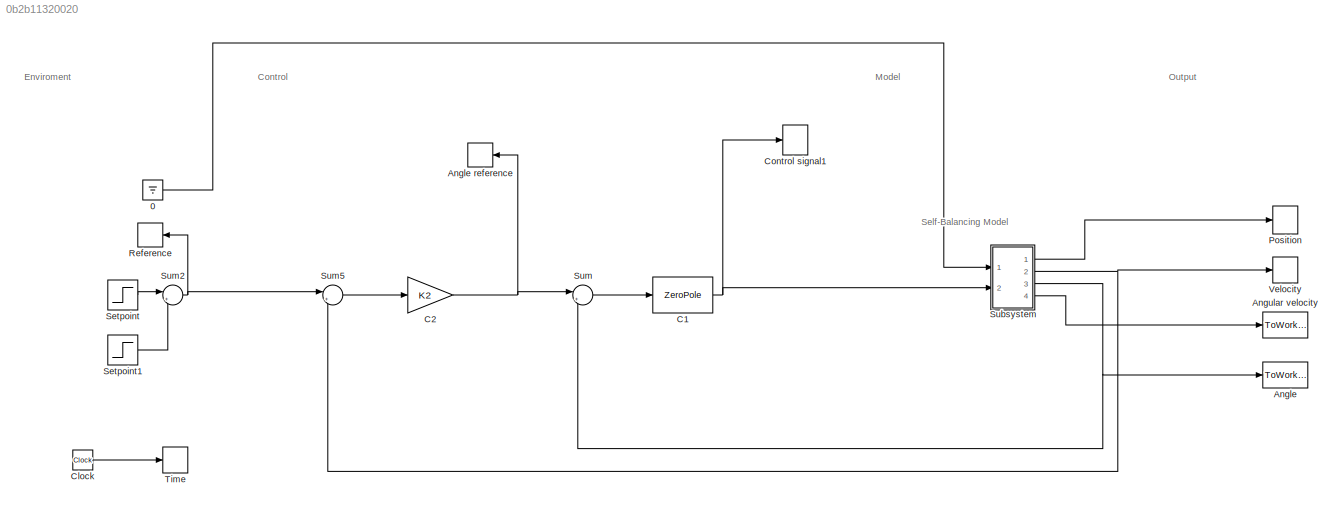
MODEL slx_0b2b11320020
KIND model
CONFIG AbsTol = auto
CONFIG EnableMultiTasking = off
CONFIG FixedStep = auto
CONFIG MaxStep = auto
CONFIG MinStep = auto
CONFIG RelTol = 1e-3
CONFIG SampleTimeConstraint = Unconstrained
CONFIG Solver = VariableStepAuto
CONFIG SolverName = VariableStepAuto
CONFIG StartTime = 0.0
CONFIG StopTime = 10.0
BLOCK [Ground] 0
BLOCK [ToWorkspace] Angle
  MaxDataPoints = inf
  Ports = [1]
  SampleTime = -1
  VariableName = theta
BLOCK [ToWorkspace] Angle reference
  MaxDataPoints = inf
  Ports = [1]
  SampleTime = -1
  VariableName = ri
BLOCK [ToWorkspace] Angular velocity
  MaxDataPoints = inf
  Ports = [1]
  SampleTime = -1
  VariableName = omega
BLOCK [ZeroPole] C1
  Gain = [K1]
  Poles = [-p1]
  Zeros = [-p]
BLOCK [Gain] C2
  Gain = K2
  OutDataTypeStr = Inherit: Inherit via internal rule
  ParamDataTypeStr = Inherit: Inherit via internal rule
  SaturateOnIntegerOverflow = off
BLOCK [Clock] Clock
BLOCK [ToWorkspace] Control signal1
  MaxDataPoints = inf
  Ports = [1]
  SampleTime = -1
  VariableName = u
BLOCK [ToWorkspace] Position
  MaxDataPoints = inf
  Ports = [1]
  SampleTime = -1
  VariableName = x
BLOCK [ToWorkspace] Reference
  MaxDataPoints = inf
  Ports = [1]
  SampleTime = -1
  VariableName = r
BLOCK [Step] Setpoint
  After = 0.5
  SampleTime = 0
  Time = 10
BLOCK [Step] Setpoint1
  After = -0.5
  SampleTime = 0
  Time = 20
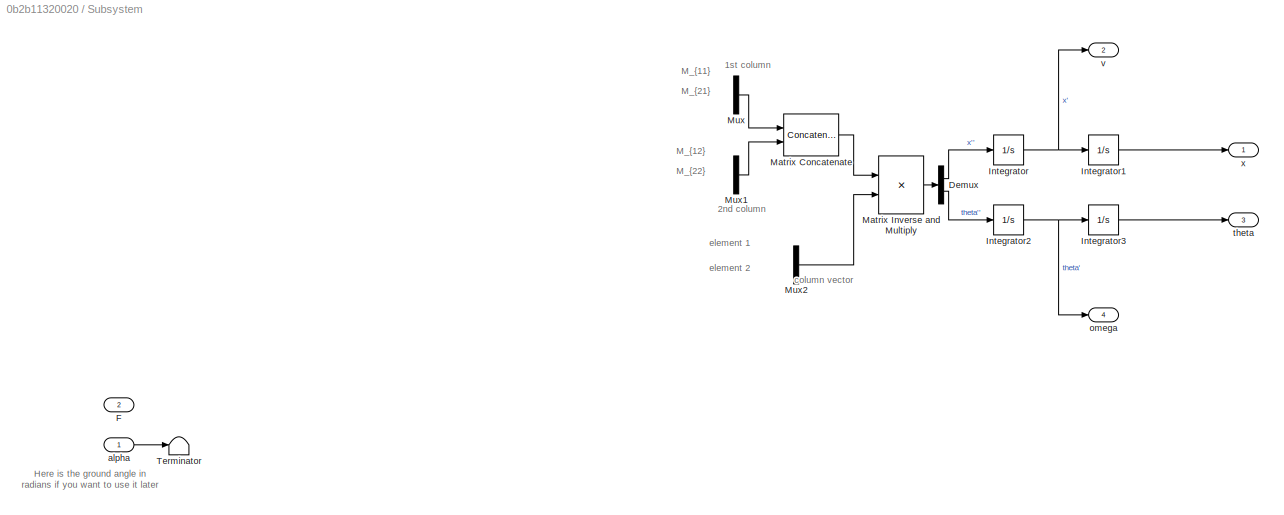
BLOCK [SubSystem] Subsystem
  Ports = [2, 4]
  RequestExecContextInheritance = off
  Variant = off
BLOCK [Demux] Subsystem/Demux
  DisplayOption = bar
  Outputs = 2
  Ports = [1, 2]
BLOCK [Inport] Subsystem/F
  IconDisplay = Port number
  Port = 2
BLOCK [Integrator] Subsystem/Integrator
  Ports = [1, 1]
BLOCK [Integrator] Subsystem/Integrator1
  Ports = [1, 1]
BLOCK [Integrator] Subsystem/Integrator2
  Ports = [1, 1]
BLOCK [Integrator] Subsystem/Integrator3
  InitialCondition = theta0
  Ports = [1, 1]
BLOCK [Concatenate] Subsystem/Matrix Concatenate
  ConcatenateDimension = 2
  Mode = Multidimensional array
  Ports = [2, 1]
BLOCK [Product] Subsystem/Matrix Inverse and Multiply
  InputSameDT = off
  Inputs = /*
  Multiplication = Matrix(*)
  OutDataTypeStr = Inherit: Inherit via internal rule
  Ports = [2, 1]
  RndMeth = Floor
  SaturateOnIntegerOverflow = off
BLOCK [Mux] Subsystem/Mux
  DisplayOption = bar
  Inputs = 2
  Ports = [2, 1]
BLOCK [Mux] Subsystem/Mux1
  DisplayOption = bar
  Inputs = 2
  Ports = [2, 1]
BLOCK [Mux] Subsystem/Mux2
  DisplayOption = bar
  Inputs = 2
  Ports = [2, 1]
BLOCK [Terminator] Subsystem/Terminator
BLOCK [Inport] Subsystem/alpha
  IconDisplay = Port number
BLOCK [Outport] Subsystem/omega
  IconDisplay = Port number
  Port = 4
BLOCK [Outport] Subsystem/theta
  IconDisplay = Port number
  Port = 3
BLOCK [Outport] Subsystem/v
  IconDisplay = Port number
  Port = 2
BLOCK [Outport] Subsystem/x
  IconDisplay = Port number
BLOCK [Sum] Sum
  IconShape = round
  InputSameDT = off
  Inputs = |+-
  OutDataTypeStr = Inherit: Inherit via internal rule
  Ports = [2, 1]
  SaturateOnIntegerOverflow = off
BLOCK [Sum] Sum2
  IconShape = round
  InputSameDT = off
  Inputs = |++
  OutDataTypeStr = Inherit: Inherit via internal rule
  Ports = [2, 1]
  SaturateOnIntegerOverflow = off
BLOCK [Sum] Sum5
  IconShape = round
  InputSameDT = off
  Inputs = |+-
  OutDataTypeStr = Inherit: Inherit via internal rule
  Ports = [2, 1]
  SaturateOnIntegerOverflow = off
BLOCK [ToWorkspace] Time
  MaxDataPoints = inf
  Ports = [1]
  SampleTime = -1
  VariableName = t
BLOCK [ToWorkspace] Velocity
  MaxDataPoints = inf
  Ports = [1]
  SampleTime = -1
  VariableName = v
ANNOTATION (root): Control
ANNOTATION (root): Enviroment
ANNOTATION (root): Model
ANNOTATION (root): Output
ANNOTATION (root): Self-Balancing Model
ANNOTATION Subsystem: 1st column
ANNOTATION Subsystem: 2nd column
ANNOTATION Subsystem: Here is the ground angle in radians if you want to use it later
ANNOTATION Subsystem: M_{11}
ANNOTATION Subsystem: M_{12}
ANNOTATION Subsystem: M_{21}
ANNOTATION Subsystem: M_{22}
ANNOTATION Subsystem: column vector
ANNOTATION Subsystem: element 1
ANNOTATION Subsystem: element 2
LINE 0:1 -> Subsystem:1
NET C1:1 -> Control signal1:1, Subsystem:2
NET C2:1 -> Angle reference:1, Sum:1
LINE Clock:1 -> Time:1
LINE Setpoint1:1 -> Sum2:2
LINE Setpoint:1 -> Sum2:1
LINE Subsystem/Demux:1 -> Subsystem/Integrator:1
LINE Subsystem/Demux:2 -> Subsystem/Integrator2:1
LINE Subsystem/Integrator1:1 -> Subsystem/x:1
NET Subsystem/Integrator2:1 -> Subsystem/Integrator3:1, Subsystem/omega:1
LINE Subsystem/Integrator3:1 -> Subsystem/theta:1
NET Subsystem/Integrator:1 -> Subsystem/Integrator1:1, Subsystem/v:1
LINE Subsystem/Matrix Concatenate:1 -> Subsystem/Matrix Inverse and Multiply:1
LINE Subsystem/Matrix Inverse and Multiply:1 -> Subsystem/Demux:1
LINE Subsystem/Mux1:1 -> Subsystem/Matrix Concatenate:2
LINE Subsystem/Mux2:1 -> Subsystem/Matrix Inverse and Multiply:2
LINE Subsystem/Mux:1 -> Subsystem/Matrix Concatenate:1
LINE Subsystem/alpha:1 -> Subsystem/Terminator:1
LINE Subsystem:1 -> Position:1
NET Subsystem:2 -> Sum5:2, Velocity:1
NET Subsystem:3 -> Angle:1, Sum:2
LINE Subsystem:4 -> Angular velocity:1
NET Sum2:1 -> Reference:1, Sum5:1
LINE Sum5:1 -> C2:1
LINE Sum:1 -> C1:1
note: NET lines group one-source signal fan-out (src -> all destinations, sorted); 1:1 wires keep LINE
